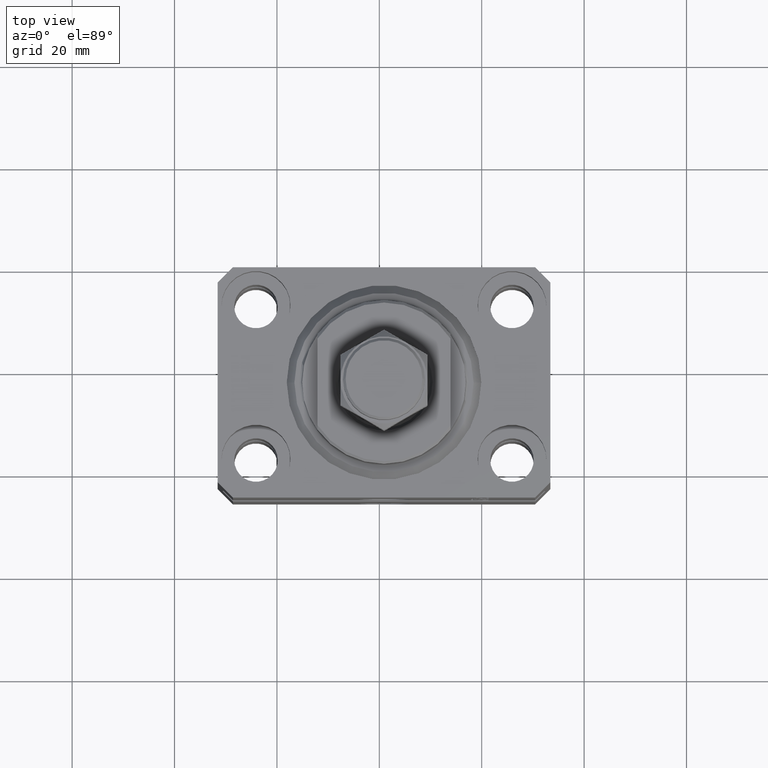
[diagram: clean part render]
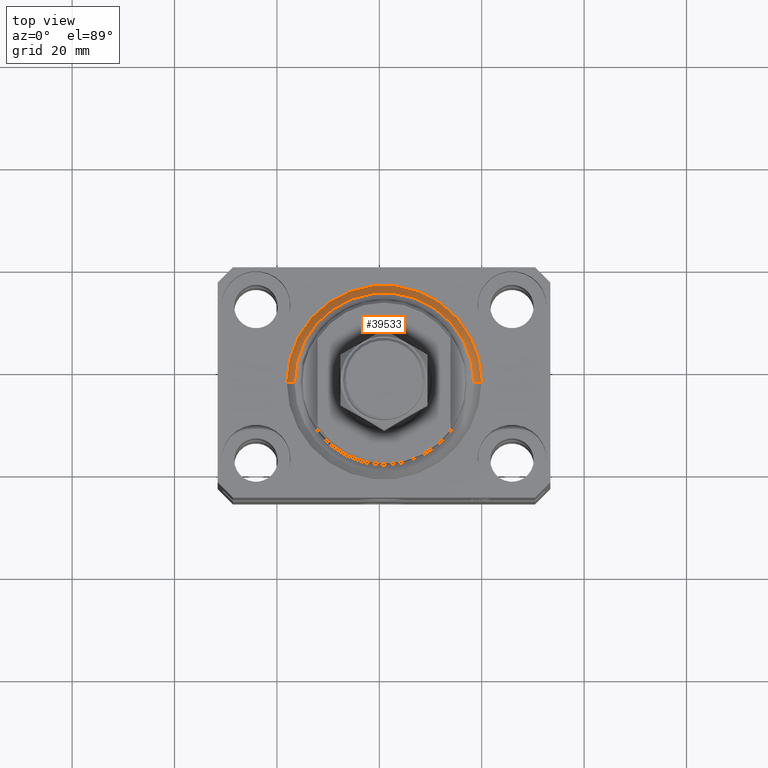
[diagram: same view with one face highlighted and labeled with its STEP entity id]
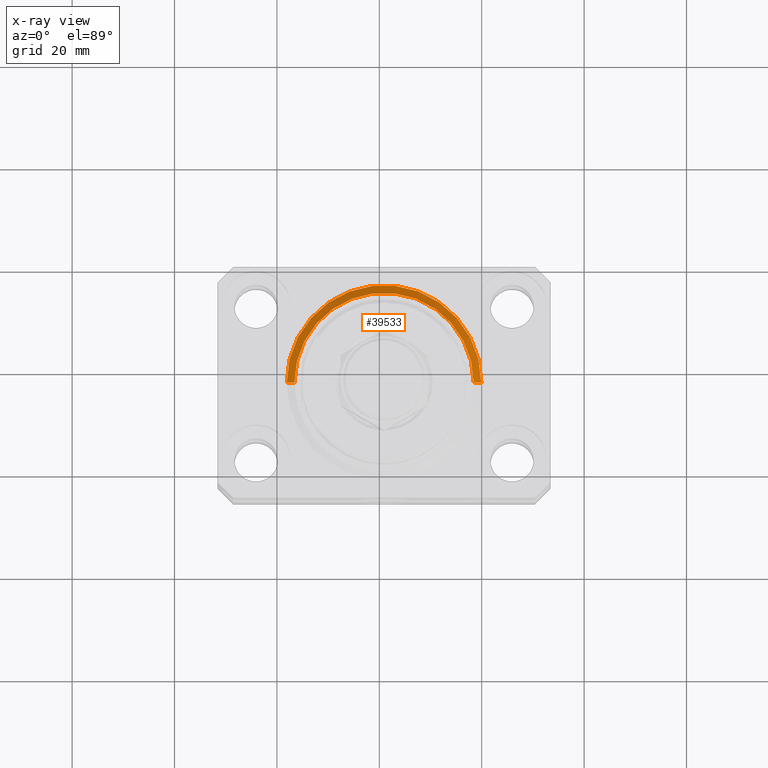
[diagram: x-ray of the same camera — body ghosted, the highlighted face saturated]
A machine part, top view. The second image highlights one B-rep face of the part: STEP entity #39533.
The next image is the same camera in x-ray: the body ghosted, the highlighted face saturated — about 0% of this face is hidden behind the body in this view.
In plain terms, the highlighted conical surface has half-angle 45 deg.
Its self-contained STEP definition (entity closure, byte-faithful):
#839 = LINE ( 'NONE', #4805, #45284 ) ;
#1458 = EDGE_LOOP ( 'NONE', ( #13481, #13525, #14120, #3358 ) ) ;
#2826 = DIRECTION ( 'NONE',  ( -0.000000000000000000, -0.000000000000000000, 1.000000000000000000 ) ) ;
#3200 = CARTESIAN_POINT ( 'NONE',  ( 17.49999999999999289, 0.000000000000000000, 0.000000000000000000 ) ) ;
#3358 = ORIENTED_EDGE ( 'NONE', *, *, #30529, .F. ) ;
#4425 = CONICAL_SURFACE ( 'NONE', #28244, 19.00000000000000000, 0.7853981633974492782 ) ;
#4805 = CARTESIAN_POINT ( 'NONE',  ( -19.00000000000000000, 2.326828918379970970E-15, 1.500000000000004885 ) ) ;
#5294 = VERTEX_POINT ( 'NONE', #44997 ) ;
#6292 = CIRCLE ( 'NONE', #15164, 19.00000000000000000 ) ;
#6324 = FACE_OUTER_BOUND ( 'NONE', #1458, .T. ) ;
#9599 = CARTESIAN_POINT ( 'NONE',  ( 0.000000000000000000, 0.000000000000000000, 1.500000000000004885 ) ) ;
#10037 = DIRECTION ( 'NONE',  ( 1.000000000000000000, 0.000000000000000000, 0.000000000000000000 ) ) ;
#11954 = CARTESIAN_POINT ( 'NONE',  ( -19.00000000000000000, 0.000000000000000000, 1.500000000000004885 ) ) ;
#12953 = DIRECTION ( 'NONE',  ( -0.000000000000000000, -0.000000000000000000, 1.000000000000000000 ) ) ;
#13313 = CIRCLE ( 'NONE', #42279, 17.49999999999999289 ) ;
#13481 = ORIENTED_EDGE ( 'NONE', *, *, #37659, .F. ) ;
#13525 = ORIENTED_EDGE ( 'NONE', *, *, #34514, .T. ) ;
#14120 = ORIENTED_EDGE ( 'NONE', *, *, #20094, .F. ) ;
#15164 = AXIS2_PLACEMENT_3D ( 'NONE', #15782, #12953, #27170 ) ;
#15782 = CARTESIAN_POINT ( 'NONE',  ( 0.000000000000000000, 0.000000000000000000, 1.500000000000004885 ) ) ;
#17067 = DIRECTION ( 'NONE',  ( 1.000000000000000000, 0.000000000000000000, 0.000000000000000000 ) ) ;
#18918 = LINE ( 'NONE', #33097, #45918 ) ;
#20094 = EDGE_CURVE ( 'NONE', #5294, #40824, #6292, .T. ) ;
#21225 = CARTESIAN_POINT ( 'NONE',  ( 0.000000000000000000, 0.000000000000000000, 0.000000000000000000 ) ) ;
#27170 = DIRECTION ( 'NONE',  ( 1.000000000000000000, 0.000000000000000000, 0.000000000000000000 ) ) ;
#28244 = AXIS2_PLACEMENT_3D ( 'NONE', #9599, #2826, #17067 ) ;
#30529 = EDGE_CURVE ( 'NONE', #32047, #5294, #18918, .T. ) ;
#31692 = DIRECTION ( 'NONE',  ( -0.000000000000000000, -0.000000000000000000, -1.000000000000000000 ) ) ;
#32047 = VERTEX_POINT ( 'NONE', #3200 ) ;
#33097 = CARTESIAN_POINT ( 'NONE',  ( 19.00000000000000000, 0.000000000000000000, 1.500000000000004885 ) ) ;
#34514 = EDGE_CURVE ( 'NONE', #42886, #40824, #839, .T. ) ;
#37659 = EDGE_CURVE ( 'NONE', #42886, #32047, #13313, .T. ) ;
#37797 = CARTESIAN_POINT ( 'NONE',  ( -17.49999999999999289, 2.234980408443919215E-15, 0.000000000000000000 ) ) ;
#39533 = ADVANCED_FACE ( 'NONE', ( #6324 ), #4425, .T. ) ;
#40824 = VERTEX_POINT ( 'NONE', #11954 ) ;
#42279 = AXIS2_PLACEMENT_3D ( 'NONE', #21225, #31692, #10037 ) ;
#42886 = VERTEX_POINT ( 'NONE', #37797 ) ;
#43922 = DIRECTION ( 'NONE',  ( -0.7071067811865483499, 8.659560562354943952E-17, 0.7071067811865467956 ) ) ;
#44031 = DIRECTION ( 'NONE',  ( 0.7071067811865483499, 0.000000000000000000, 0.7071067811865467956 ) ) ;
#44997 = CARTESIAN_POINT ( 'NONE',  ( 19.00000000000000000, 2.326828918379970970E-15, 1.500000000000004885 ) ) ;
#45284 = VECTOR ( 'NONE', #43922, 1000.000000000000000 ) ;
#45918 = VECTOR ( 'NONE', #44031, 1000.000000000000000 ) ;